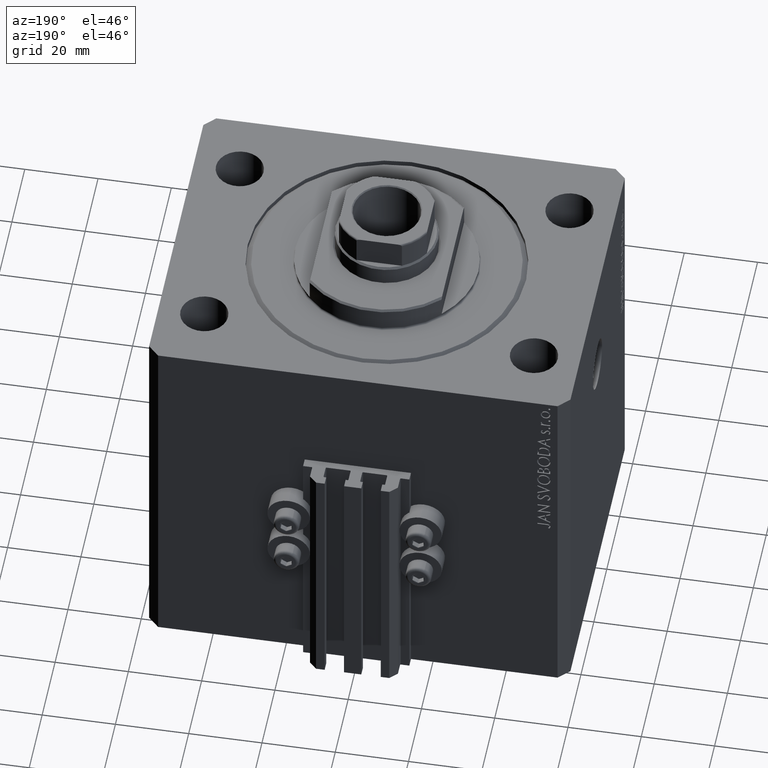
[diagram: clean part render]
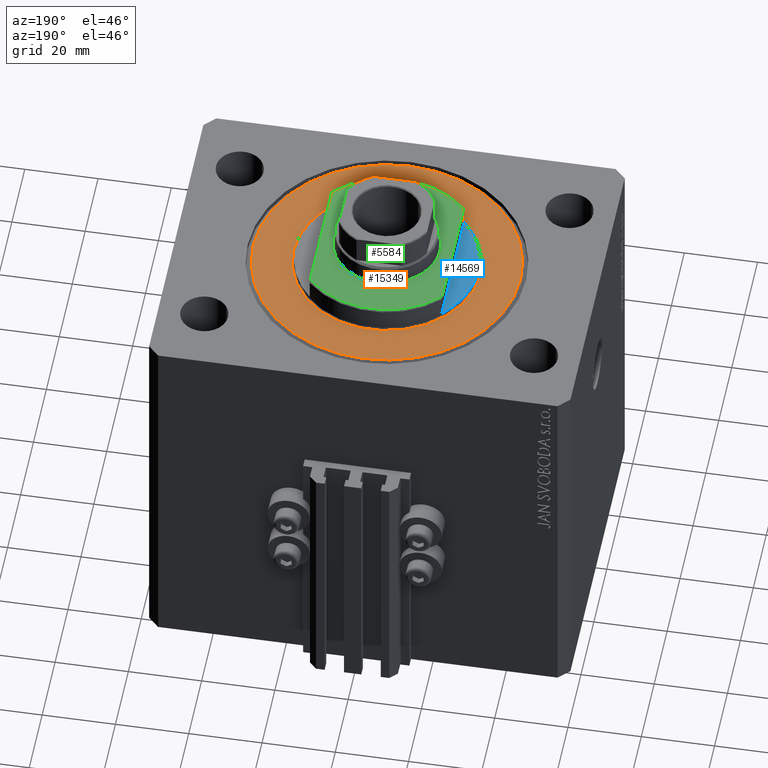
[diagram: same view with three faces highlighted in distinct colors, each labeled with its STEP entity id]
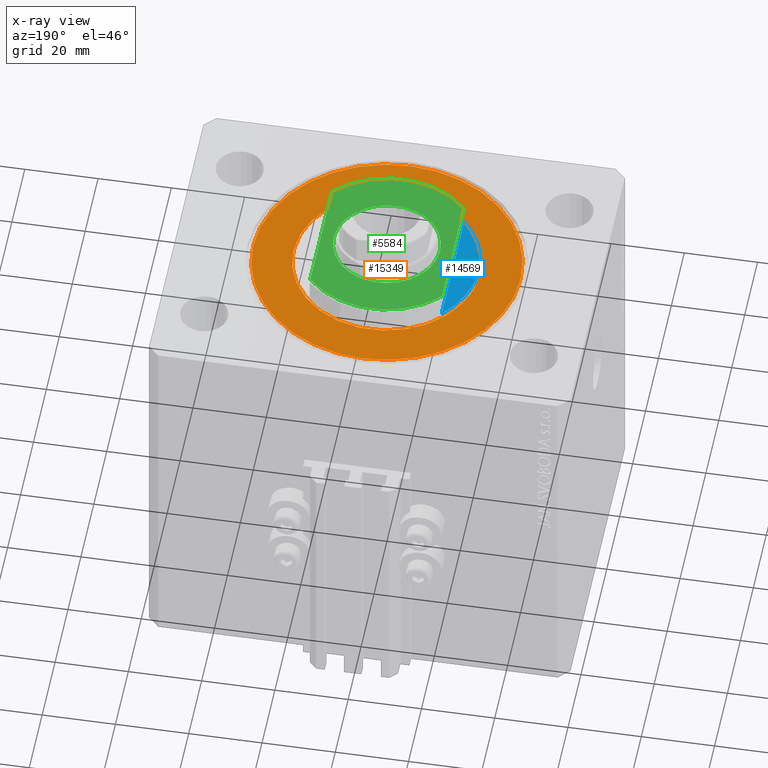
[diagram: x-ray of the same camera — body ghosted, the three highlighted faces saturated]
A machine part, auxiliary view with three faces highlighted in distinct colors.
The next image is the same camera in x-ray (body ghosted, the three faces saturated) — at least one of them is partly hidden behind the body in this view.
Their STEP definitions:

[orange] entity #15349 — the highlighted planar face has unit normal (0, 0, -1).
#838 = DIRECTION ( 'NONE',  ( -0.000000000000000000, -0.000000000000000000, -1.000000000000000000 ) ) ;
#1650 = EDGE_CURVE ( 'NONE', #38357, #24262, #15956, .T. ) ;
#3172 = PLANE ( 'NONE',  #17789 ) ;
#4090 = AXIS2_PLACEMENT_3D ( 'NONE', #23416, #12407, #11289 ) ;
#7250 = FACE_OUTER_BOUND ( 'NONE', #31032, .T. ) ;
#8259 = CARTESIAN_POINT ( 'NONE',  ( 0.000000000000000000, 0.000000000000000000, 0.000000000000000000 ) ) ;
#8670 = CIRCLE ( 'NONE', #4090, 36.50000000000000000 ) ;
#8946 = EDGE_LOOP ( 'NONE', ( #24037, #41264 ) ) ;
#11289 = DIRECTION ( 'NONE',  ( 1.000000000000000000, 0.000000000000000000, 0.000000000000000000 ) ) ;
#11554 = ORIENTED_EDGE ( 'NONE', *, *, #39568, .T. ) ;
#12282 = CARTESIAN_POINT ( 'NONE',  ( 36.50000000000000000, 0.000000000000000000, 0.000000000000000000 ) ) ;
#12407 = DIRECTION ( 'NONE',  ( -0.000000000000000000, -0.000000000000000000, -1.000000000000000000 ) ) ;
#13454 = CARTESIAN_POINT ( 'NONE',  ( 25.50000000000000355, 0.000000000000000000, 2.168404344971008868E-16 ) ) ;
#14947 = CIRCLE ( 'NONE', #22594, 36.50000000000000000 ) ;
#15349 = ADVANCED_FACE ( 'NONE', ( #18024, #7250 ), #3172, .F. ) ;
#15956 = CIRCLE ( 'NONE', #22839, 25.50000000000000355 ) ;
#16457 = CARTESIAN_POINT ( 'NONE',  ( 0.000000000000000000, 0.000000000000000000, 0.000000000000000000 ) ) ;
#17789 = AXIS2_PLACEMENT_3D ( 'NONE', #40040, #24956, #18257 ) ;
#18024 = FACE_BOUND ( 'NONE', #8946, .T. ) ;
#18257 = DIRECTION ( 'NONE',  ( 1.000000000000000000, 0.000000000000000000, -0.000000000000000000 ) ) ;
#18459 = CARTESIAN_POINT ( 'NONE',  ( -36.50000000000000000, 4.561809326823889791E-15, 0.000000000000000000 ) ) ;
#19320 = CIRCLE ( 'NONE', #24683, 25.50000000000000355 ) ;
#20737 = DIRECTION ( 'NONE',  ( 0.000000000000000000, 0.000000000000000000, 1.000000000000000000 ) ) ;
#22594 = AXIS2_PLACEMENT_3D ( 'NONE', #8259, #838, #32923 ) ;
#22839 = AXIS2_PLACEMENT_3D ( 'NONE', #42256, #33881, #34596 ) ;
#23416 = CARTESIAN_POINT ( 'NONE',  ( 0.000000000000000000, 0.000000000000000000, 0.000000000000000000 ) ) ;
#24037 = ORIENTED_EDGE ( 'NONE', *, *, #38327, .T. ) ;
#24262 = VERTEX_POINT ( 'NONE', #13454 ) ;
#24683 = AXIS2_PLACEMENT_3D ( 'NONE', #16457, #20737, #42066 ) ;
#24956 = DIRECTION ( 'NONE',  ( 0.000000000000000000, 0.000000000000000000, 1.000000000000000000 ) ) ;
#27457 = EDGE_CURVE ( 'NONE', #41212, #38630, #14947, .T. ) ;
#27825 = ORIENTED_EDGE ( 'NONE', *, *, #27457, .T. ) ;
#31032 = EDGE_LOOP ( 'NONE', ( #27825, #11554 ) ) ;
#32923 = DIRECTION ( 'NONE',  ( 1.000000000000000000, 0.000000000000000000, 0.000000000000000000 ) ) ;
#33881 = DIRECTION ( 'NONE',  ( 0.000000000000000000, 0.000000000000000000, 1.000000000000000000 ) ) ;
#34596 = DIRECTION ( 'NONE',  ( 1.000000000000000000, 0.000000000000000000, 0.000000000000000000 ) ) ;
#38327 = EDGE_CURVE ( 'NONE', #24262, #38357, #19320, .T. ) ;
#38357 = VERTEX_POINT ( 'NONE', #38475 ) ;
#38475 = CARTESIAN_POINT ( 'NONE',  ( -25.50000000000000355, 3.122849337825751011E-15, 2.168404344971008868E-16 ) ) ;
#38630 = VERTEX_POINT ( 'NONE', #18459 ) ;
#39568 = EDGE_CURVE ( 'NONE', #38630, #41212, #8670, .T. ) ;
#40040 = CARTESIAN_POINT ( 'NONE',  ( 0.000000000000000000, 0.000000000000000000, 0.000000000000000000 ) ) ;
#41212 = VERTEX_POINT ( 'NONE', #12282 ) ;
#41264 = ORIENTED_EDGE ( 'NONE', *, *, #1650, .T. ) ;
#42066 = DIRECTION ( 'NONE',  ( 1.000000000000000000, 0.000000000000000000, 0.000000000000000000 ) ) ;
#42256 = CARTESIAN_POINT ( 'NONE',  ( 0.000000000000000000, 0.000000000000000000, 0.000000000000000000 ) ) ;

[blue] entity #14569 — the highlighted planar face has unit normal (0, 0, 1).
#965 = EDGE_CURVE ( 'NONE', #31269, #14358, #33292, .T. ) ;
#976 = DIRECTION ( 'NONE',  ( 0.000000000000000000, 0.000000000000000000, -1.000000000000000000 ) ) ;
#1185 = DIRECTION ( 'NONE',  ( -1.000000000000000000, 0.000000000000000000, 0.000000000000000000 ) ) ;
#3577 = CARTESIAN_POINT ( 'NONE',  ( 0.000000000000000000, 0.000000000000000000, -1.000000000000000000 ) ) ;
#3808 = FACE_OUTER_BOUND ( 'NONE', #20539, .T. ) ;
#5482 = CARTESIAN_POINT ( 'NONE',  ( 0.000000000000000000, 0.000000000000000000, -1.000000000000000000 ) ) ;
#6295 = AXIS2_PLACEMENT_3D ( 'NONE', #5482, #20082, #1185 ) ;
#6757 = VECTOR ( 'NONE', #40717, 1000.000000000000000 ) ;
#9961 = ORIENTED_EDGE ( 'NONE', *, *, #19330, .T. ) ;
#9991 = VERTEX_POINT ( 'NONE', #11339 ) ;
#10613 = CARTESIAN_POINT ( 'NONE',  ( 18.00000000000000000, 17.34935157289747920, -1.000000000000000000 ) ) ;
#11339 = CARTESIAN_POINT ( 'NONE',  ( 25.00000000000000000, 0.000000000000000000, -1.000000000000000000 ) ) ;
#14358 = VERTEX_POINT ( 'NONE', #18722 ) ;
#14569 = ADVANCED_FACE ( 'NONE', ( #3808 ), #33485, .T. ) ;
#14870 = DIRECTION ( 'NONE',  ( -1.000000000000000000, 0.000000000000000000, 0.000000000000000000 ) ) ;
#15207 = ORIENTED_EDGE ( 'NONE', *, *, #29026, .T. ) ;
#15431 = ORIENTED_EDGE ( 'NONE', *, *, #965, .F. ) ;
#16222 = AXIS2_PLACEMENT_3D ( 'NONE', #3577, #36838, #22476 ) ;
#18069 = CIRCLE ( 'NONE', #44810, 25.00000000000000000 ) ;
#18722 = CARTESIAN_POINT ( 'NONE',  ( 18.00000000000000000, -17.34935157289747920, -1.000000000000000000 ) ) ;
#19330 = EDGE_CURVE ( 'NONE', #31269, #9991, #27694, .T. ) ;
#20082 = DIRECTION ( 'NONE',  ( 0.000000000000000000, 0.000000000000000000, -1.000000000000000000 ) ) ;
#20539 = EDGE_LOOP ( 'NONE', ( #9961, #15207, #15431 ) ) ;
#22476 = DIRECTION ( 'NONE',  ( 1.000000000000000000, 0.000000000000000000, 0.000000000000000000 ) ) ;
#27694 = CIRCLE ( 'NONE', #6295, 25.00000000000000000 ) ;
#29026 = EDGE_CURVE ( 'NONE', #9991, #14358, #18069, .T. ) ;
#29693 = CARTESIAN_POINT ( 'NONE',  ( 18.00000000000000000, -41.24318125460256113, -1.000000000000000000 ) ) ;
#31269 = VERTEX_POINT ( 'NONE', #10613 ) ;
#33053 = CARTESIAN_POINT ( 'NONE',  ( 0.000000000000000000, 0.000000000000000000, -1.000000000000000000 ) ) ;
#33292 = LINE ( 'NONE', #29693, #6757 ) ;
#33485 = PLANE ( 'NONE',  #16222 ) ;
#36838 = DIRECTION ( 'NONE',  ( 0.000000000000000000, 0.000000000000000000, -1.000000000000000000 ) ) ;
#40717 = DIRECTION ( 'NONE',  ( 0.000000000000000000, -1.000000000000000000, -0.000000000000000000 ) ) ;
#44810 = AXIS2_PLACEMENT_3D ( 'NONE', #33053, #976, #14870 ) ;

[green] entity #5584 — the highlighted planar face has unit normal (0, 0, 1).
#1150 = CARTESIAN_POINT ( 'NONE',  ( 18.00000000000000000, -41.24318125460256113, -7.000000000000000000 ) ) ;
#1759 = AXIS2_PLACEMENT_3D ( 'NONE', #35694, #2908, #32103 ) ;
#2908 = DIRECTION ( 'NONE',  ( 0.000000000000000000, 0.000000000000000000, -1.000000000000000000 ) ) ;
#3059 = ORIENTED_EDGE ( 'NONE', *, *, #24899, .T. ) ;
#4380 = ORIENTED_EDGE ( 'NONE', *, *, #32130, .T. ) ;
#5157 = EDGE_LOOP ( 'NONE', ( #22027, #4380, #3059, #38508 ) ) ;
#5584 = ADVANCED_FACE ( 'NONE', ( #30576, #16684 ), #31290, .T. ) ;
#6444 = EDGE_LOOP ( 'NONE', ( #45471, #30013 ) ) ;
#7225 = DIRECTION ( 'NONE',  ( 0.000000000000000000, 0.000000000000000000, -1.000000000000000000 ) ) ;
#7753 = AXIS2_PLACEMENT_3D ( 'NONE', #20019, #13312, #27203 ) ;
#8165 = CARTESIAN_POINT ( 'NONE',  ( 14.50000000000001243, 1.775737858763663987E-15, -7.000000000000000000 ) ) ;
#8561 = DIRECTION ( 'NONE',  ( 0.000000000000000000, -1.000000000000000000, -0.000000000000000000 ) ) ;
#9273 = LINE ( 'NONE', #27935, #25267 ) ;
#12107 = VERTEX_POINT ( 'NONE', #28481 ) ;
#12386 = DIRECTION ( 'NONE',  ( 0.000000000000000000, 0.000000000000000000, -1.000000000000000000 ) ) ;
#12528 = CARTESIAN_POINT ( 'NONE',  ( -18.00000000000000000, -16.62077013859462227, -7.000000000000000000 ) ) ;
#12592 = EDGE_CURVE ( 'NONE', #36695, #12107, #29904, .T. ) ;
#12872 = DIRECTION ( 'NONE',  ( -0.000000000000000000, -1.000000000000000000, -0.000000000000000000 ) ) ;
#13312 = DIRECTION ( 'NONE',  ( -0.000000000000000000, -0.000000000000000000, 1.000000000000000000 ) ) ;
#13761 = VERTEX_POINT ( 'NONE', #20822 ) ;
#16684 = FACE_OUTER_BOUND ( 'NONE', #5157, .T. ) ;
#18721 = AXIS2_PLACEMENT_3D ( 'NONE', #19430, #20139, #37380 ) ;
#19430 = CARTESIAN_POINT ( 'NONE',  ( 0.000000000000000000, 0.000000000000000000, -7.000000000000000000 ) ) ;
#20019 = CARTESIAN_POINT ( 'NONE',  ( 0.000000000000000000, 0.000000000000000000, -7.000000000000000000 ) ) ;
#20139 = DIRECTION ( 'NONE',  ( -0.000000000000000000, -0.000000000000000000, 1.000000000000000000 ) ) ;
#20822 = CARTESIAN_POINT ( 'NONE',  ( -18.00000000000000000, 16.62077013859462227, -7.000000000000000000 ) ) ;
#20953 = AXIS2_PLACEMENT_3D ( 'NONE', #32599, #7225, #46722 ) ;
#21122 = EDGE_CURVE ( 'NONE', #13761, #35454, #29263, .T. ) ;
#22027 = ORIENTED_EDGE ( 'NONE', *, *, #21122, .T. ) ;
#22536 = VECTOR ( 'NONE', #8561, 1000.000000000000000 ) ;
#23080 = CARTESIAN_POINT ( 'NONE',  ( 18.00000000000000000, 16.62077013859462227, -7.000000000000000000 ) ) ;
#23292 = CIRCLE ( 'NONE', #18721, 14.50000000000001421 ) ;
#24899 = EDGE_CURVE ( 'NONE', #47111, #41122, #45436, .T. ) ;
#25267 = VECTOR ( 'NONE', #12872, 1000.000000000000000 ) ;
#26979 = DIRECTION ( 'NONE',  ( -1.000000000000000000, 0.000000000000000000, -0.000000000000000000 ) ) ;
#27203 = DIRECTION ( 'NONE',  ( -1.000000000000000000, 0.000000000000000000, 0.000000000000000000 ) ) ;
#27263 = CARTESIAN_POINT ( 'NONE',  ( 18.00000000000000000, -16.62077013859462227, -7.000000000000000000 ) ) ;
#27935 = CARTESIAN_POINT ( 'NONE',  ( -18.00000000000000000, -41.24318125460256113, -7.000000000000000000 ) ) ;
#28481 = CARTESIAN_POINT ( 'NONE',  ( -14.50000000000001243, 0.000000000000000000, -7.000000000000000000 ) ) ;
#29263 = CIRCLE ( 'NONE', #1759, 24.49999999999996803 ) ;
#29904 = CIRCLE ( 'NONE', #7753, 14.50000000000001421 ) ;
#30013 = ORIENTED_EDGE ( 'NONE', *, *, #12592, .T. ) ;
#30576 = FACE_BOUND ( 'NONE', #6444, .T. ) ;
#31290 = PLANE ( 'NONE',  #39618 ) ;
#32103 = DIRECTION ( 'NONE',  ( -1.000000000000000000, 0.000000000000000000, 0.000000000000000000 ) ) ;
#32130 = EDGE_CURVE ( 'NONE', #35454, #47111, #37291, .T. ) ;
#32224 = EDGE_CURVE ( 'NONE', #13761, #41122, #9273, .T. ) ;
#32599 = CARTESIAN_POINT ( 'NONE',  ( 0.000000000000000000, 0.000000000000000000, -7.000000000000000000 ) ) ;
#35454 = VERTEX_POINT ( 'NONE', #23080 ) ;
#35694 = CARTESIAN_POINT ( 'NONE',  ( 0.000000000000000000, 0.000000000000000000, -7.000000000000000000 ) ) ;
#36695 = VERTEX_POINT ( 'NONE', #8165 ) ;
#37291 = LINE ( 'NONE', #1150, #22536 ) ;
#37380 = DIRECTION ( 'NONE',  ( -1.000000000000000000, 0.000000000000000000, 0.000000000000000000 ) ) ;
#38508 = ORIENTED_EDGE ( 'NONE', *, *, #32224, .F. ) ;
#39618 = AXIS2_PLACEMENT_3D ( 'NONE', #45174, #12386, #26979 ) ;
#41122 = VERTEX_POINT ( 'NONE', #12528 ) ;
#45174 = CARTESIAN_POINT ( 'NONE',  ( 0.000000000000000000, 0.000000000000000000, -7.000000000000000000 ) ) ;
#45436 = CIRCLE ( 'NONE', #20953, 24.49999999999996803 ) ;
#45471 = ORIENTED_EDGE ( 'NONE', *, *, #46786, .T. ) ;
#46722 = DIRECTION ( 'NONE',  ( -1.000000000000000000, 0.000000000000000000, 0.000000000000000000 ) ) ;
#46786 = EDGE_CURVE ( 'NONE', #12107, #36695, #23292, .T. ) ;
#47111 = VERTEX_POINT ( 'NONE', #27263 ) ;